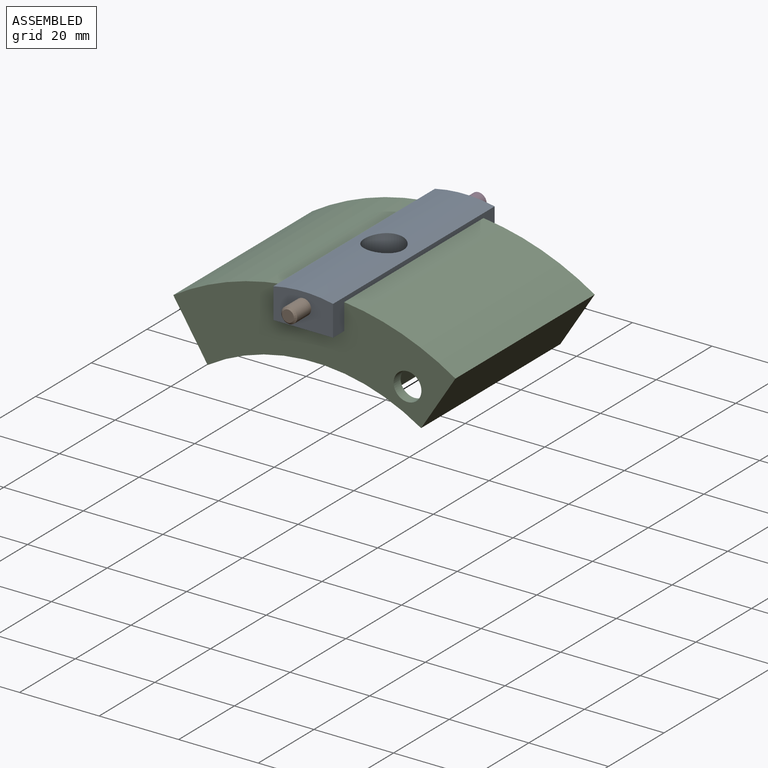
[diagram: assembled view]
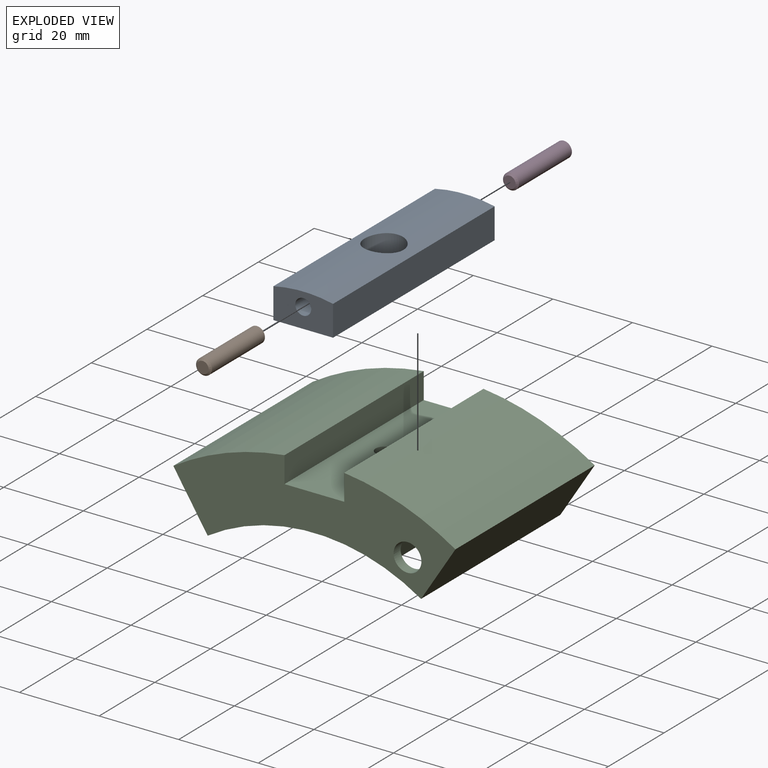
[diagram: exploded view]
GUIDED TOUR — MATED ASSEMBLY (Onshape document 415f8a1dd4521c900c640123, AutoMate assembly 415f8a1dd4521c900c640123_1ac412d3dacfac582a6eeb7e_2874e17421906130be26e6e2_default)

This assembly has 4 components, labeled P0..P3 below (a component is one placed occurrence of a part; the same part can appear more than once), held together by 3 mates. A mate is a constraint between two components; its type names the relative motion it leaves free:
  FASTENED — locks the two components together rigidly (no relative motion).
Axis/direction vectors are unit vectors and 'through' points are millimeter coordinates, both in the assembly's world frame.

MATES
  1. FASTENED "Fastened 1": P3 <-> P0, direction (0.000, 1.000, 0.000) through (-103.35, 42.06, -6.06) mm
  2. FASTENED "Fastened 3": P0 <-> P2, direction (0.000, 0.000, -1.000) through (-103.35, 27.06, -11.06) mm
  3. FASTENED "Fastened 2": P1 <-> P0, direction (0.000, 1.000, 0.000) through (-103.35, 12.06, -6.06) mm

ASSEMBLY ORDER
  1. P0 — the base component [order heuristic]
  2. P1 [order verified]
  3. P3 — core [order heuristic]
  4. P2 [order verified]
Order-tag legend:
  [order verified] — this step's position reverses a verified removal order: the component was checked to insert without passing through the ones already placed.
  [order heuristic] — the first 2 components form the assembly's core: parts whose collision-free extraction could not be verified, listed in mate-graph order.

Of the 4 components, 3 carry the full construction recipe — the FeatureScript program that regenerates the part's solid from scratch; the rest are supplied as boundary geometry only.
Each toured component is shown spotlighted twice — in the assembled view, then in the exploded view, where a leader line traces a displaced component back to its assembled socket (saturated green if recipe-attached, orange if geometry-only; every other component desaturated gray) — followed by its recipe or geometry summary and the mates that hold it.
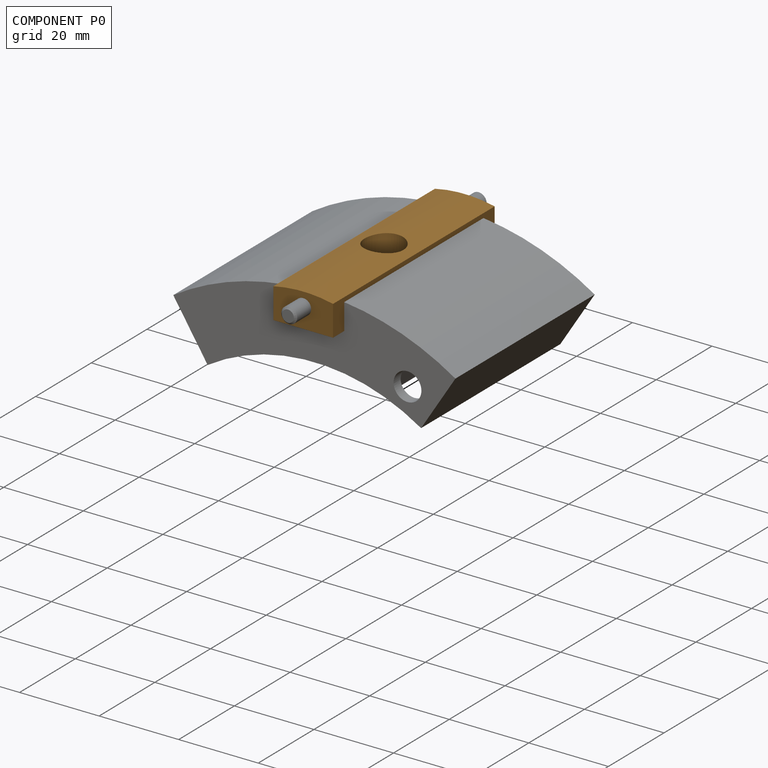
[diagram: component P0 — assembled]
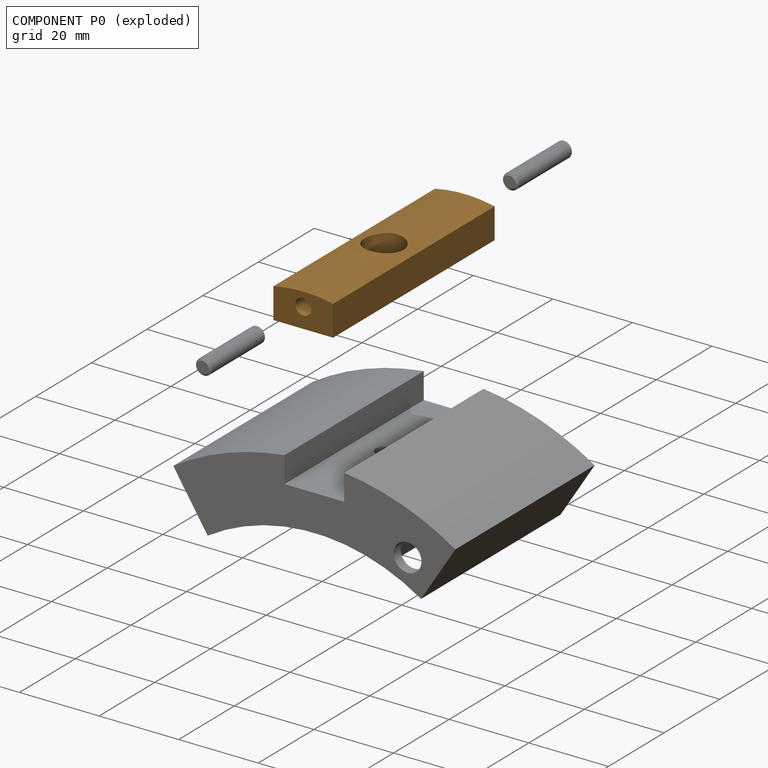
[diagram: component P0 — exploded]
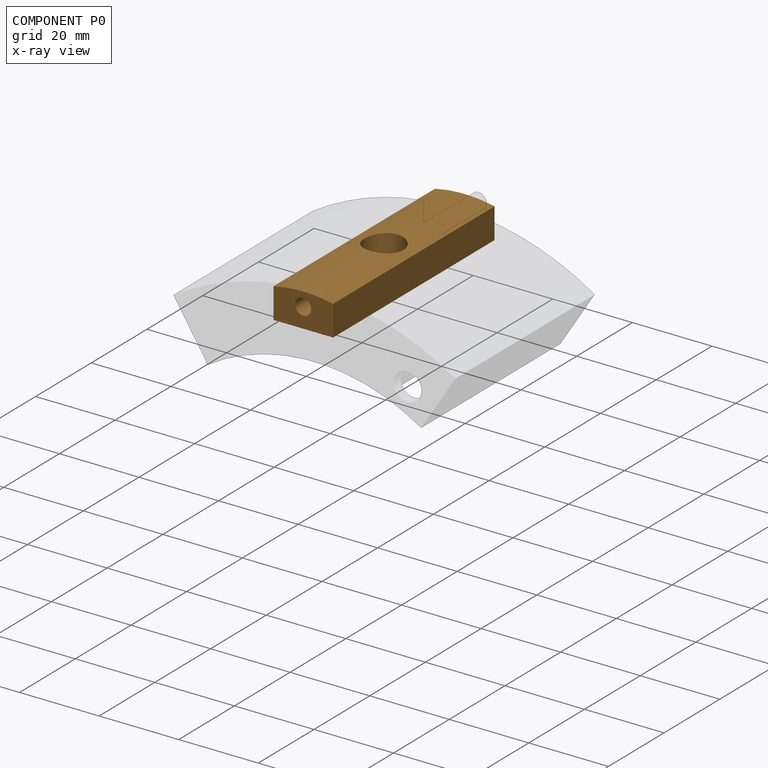
[diagram: component P0 — x-ray view]
COMPONENT P0 — geometry summary (no construction recipe available for this part):
  bounding box: 58.0 x 15.0 x 8.5 mm
  B-rep topology: 1 solid, 13 faces, 54 edges
  volume: 6363 mm^3 (86% of its bounding box)
  symmetry: 2-fold rotationally symmetric about the z axis; mirror-symmetric across its x mid-plane, y mid-plane
Held by: FASTENED mate "Fastened 1" to P3; FASTENED mate "Fastened 3" to P2; FASTENED mate "Fastened 2" to P1.
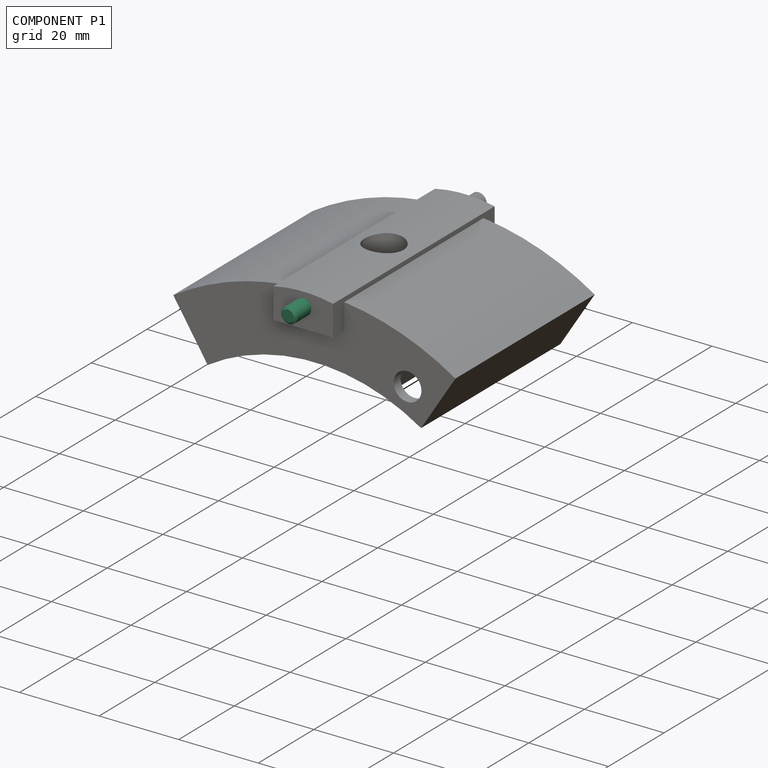
[diagram: component P1 — assembled]
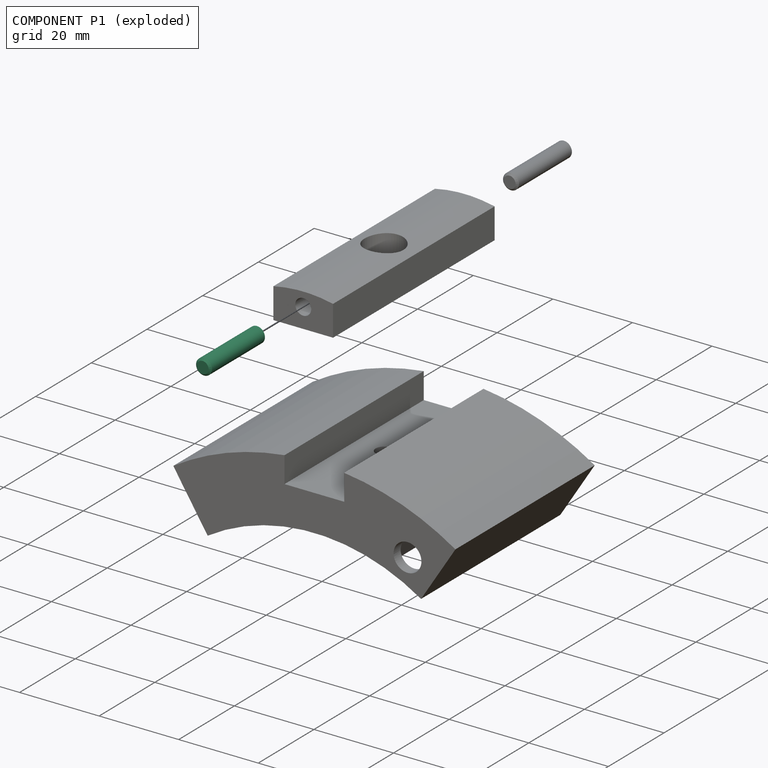
[diagram: component P1 — exploded]
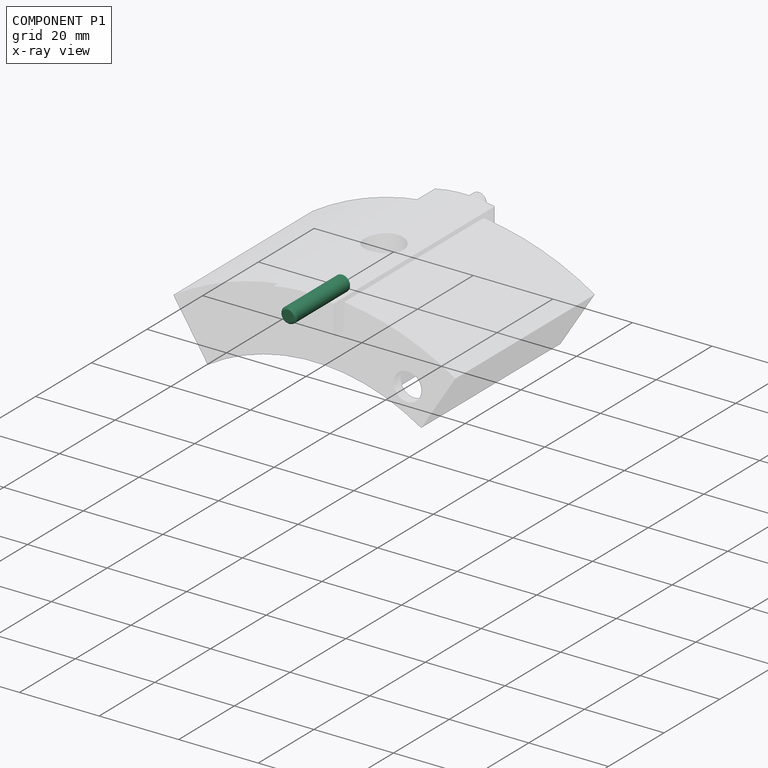
[diagram: component P1 — x-ray view]
COMPONENT P1 — recipe-attached (CADFS 00849729, mesh-verified: the recipe's output STEP matches this component's geometry to below the mesh-comparison resolution (tessellation chordal tolerance ~0.0312 mm)).
Held by: FASTENED mate "Fastened 2" to P0.
Construction recipe (FeatureScript — the CAD program that rebuilds this solid; sketch coordinates are in the units given by the * unit suffixes, e.g. mm):

FeatureScript 1511;
import(path : "onshape/std/geometry.fs", version : "1511.0");
import(path : "onshape/std/common.fs", version : "1511.0");
const mm = millimeter;
const VERTEX = EntityType.VERTEX;
const EDGE = EntityType.EDGE;
const FACE = EntityType.FACE;
const BODY = EntityType.BODY;
function v(x, y){return vector(x, y);}
function OD(order){return orderDisambiguation(order);}
function OSD(set){return originalSetDisambiguation(set);}
function TD(topology){return topologyDisambiguation(topology);}
function TDD(query){return trueDependencyDisambiguation(query);}
function sQuery(a, b, c) {return sketchEntityQuery(a, b, c);}

annotation { "Feature Type Name" : "Feature", "Feature Type Description" : "" }
export const myFeature = defineFeature(function(context is Context, id is Id, definition is map)
    precondition{}
    {
        {
            var Q0;
            Q0=qCreatedBy(makeId("Top.planeOp"),FACE);
            var sketch = newSketch(context, id + "F0", { "sketchPlane" : qUnion([Q0])});
            skCircle(sketch, "E0", {"center": v(0, 0) * mm, "radius": 2 * mm});
            skSolve(sketch);
        }
        {
            var Q0;
            Q0=makeQuery(id+"F0.imprint","IMPRINT",FACE,{"disambiguationData":[TD([[makeQuery(id+"F0.imprint","IMPRINT",EDGE,{"derivedFrom":sQuery(id+"F0.wireOp",EDGE,"E0")}),1.0]])]});
            extrude(context, id + "F1", {"entities" : qUnion([Q0]), "depth" : 20 * mm, "offsetDistance" : 25 * mm});
        }
        {
            var Q0;
            Q0=makeQuery(id+"F1.opExtrude","CAP_EDGE",EDGE,{"disambiguationData":[OSD([sQuery(id+"F0.wireOp",EDGE,"E0")])],"isStart":false});
            var Q1;
            Q1=makeQuery(id+"F1.opExtrude","CAP_EDGE",EDGE,{"disambiguationData":[OSD([sQuery(id+"F0.wireOp",EDGE,"E0")])],"isStart":true});
            chamfer(context, id + "F2", {"entities" : qUnion([Q0, Q1]), "width" : 0.5 * mm, "tangentPropagation" : true});
        }
    });
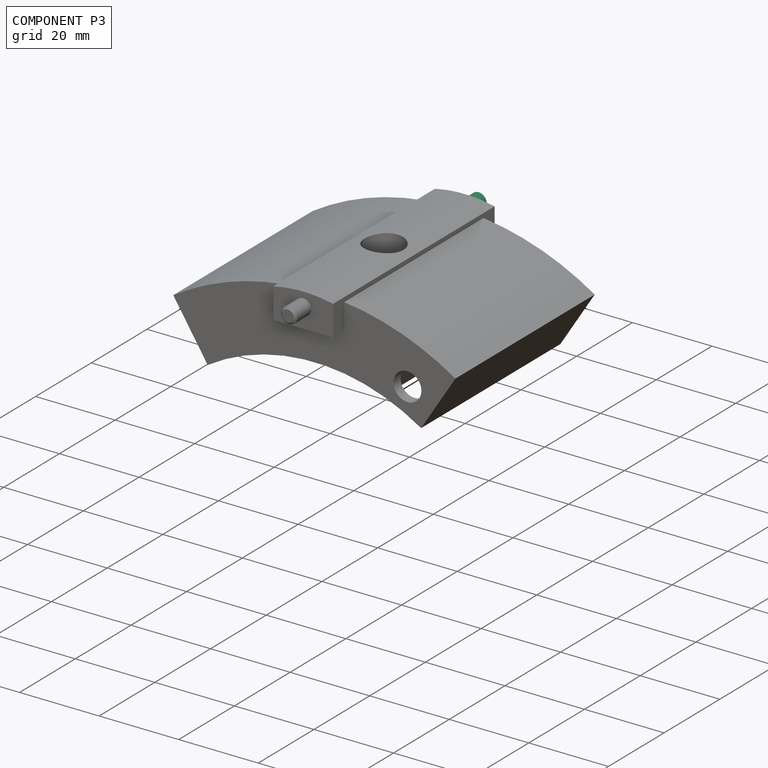
[diagram: component P3 — assembled]
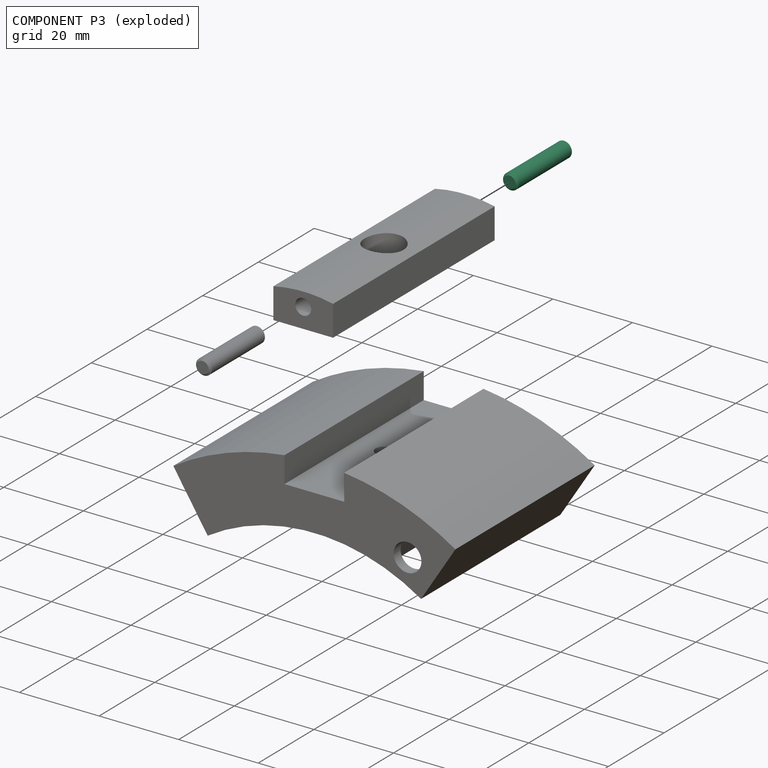
[diagram: component P3 — exploded]
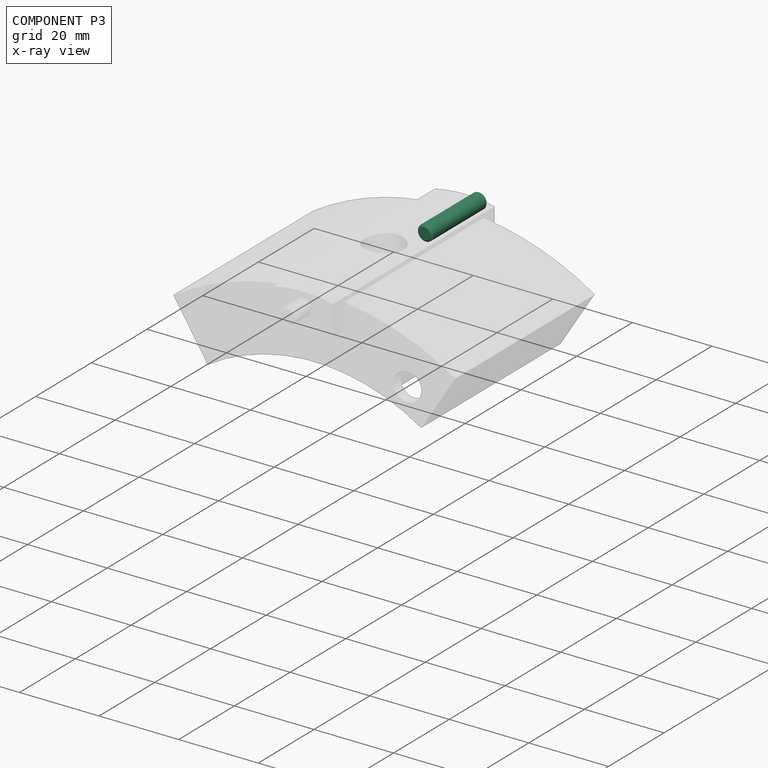
[diagram: component P3 — x-ray view]
COMPONENT P3 — same part as P1 (CADFS 00849729); its construction recipe is shown at P1.
Held by: FASTENED mate "Fastened 1" to P0.
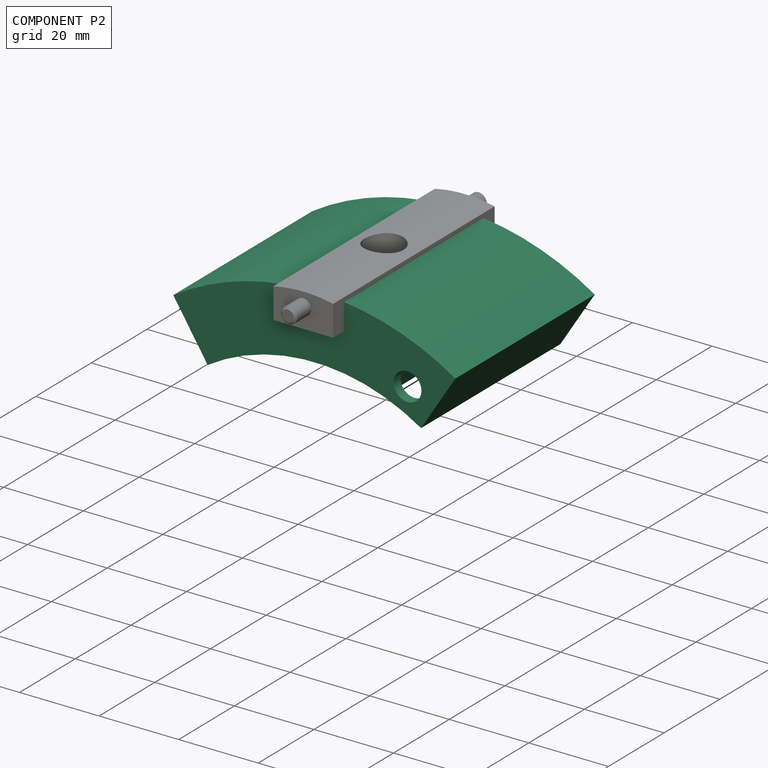
[diagram: component P2 — assembled]
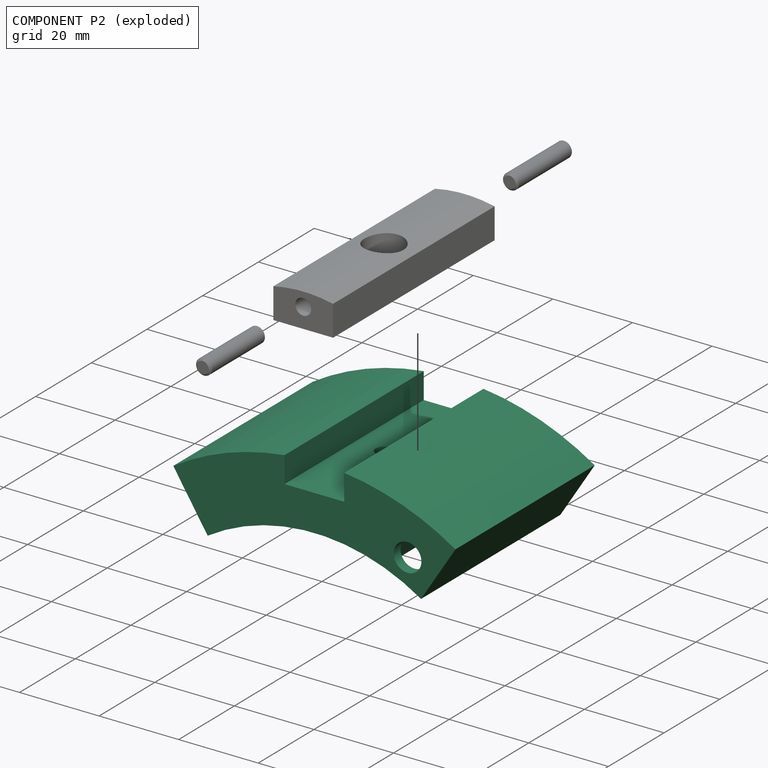
[diagram: component P2 — exploded]
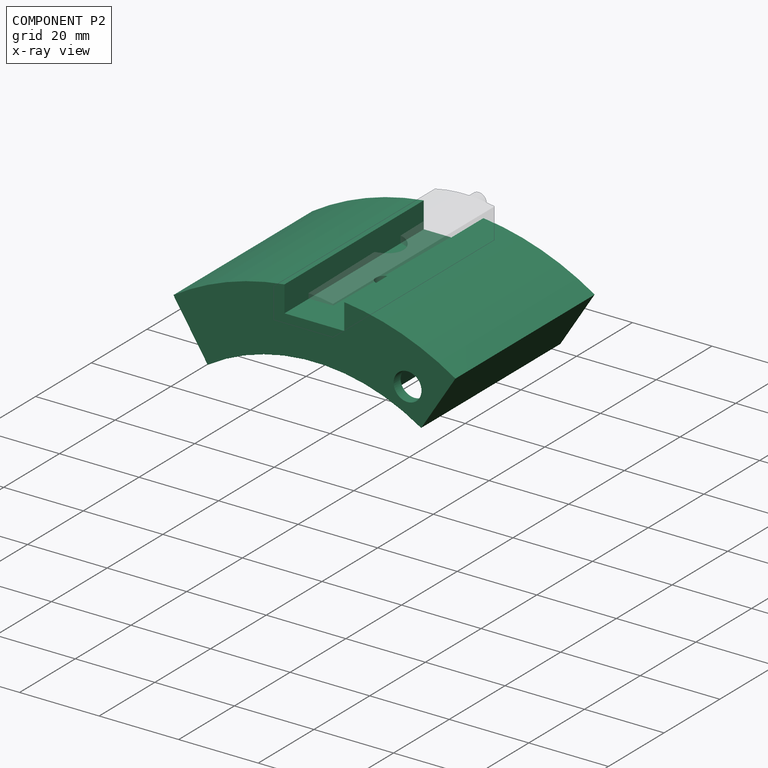
[diagram: component P2 — x-ray view]
COMPONENT P2 — recipe-attached (CADFS 00849004, mesh-verified: the recipe's output STEP matches this component's geometry to below the mesh-comparison resolution (tessellation chordal tolerance ~0.135 mm)).
Held by: FASTENED mate "Fastened 3" to P0.
Construction recipe (FeatureScript — the CAD program that rebuilds this solid; sketch coordinates are in the units given by the * unit suffixes, e.g. mm):

FeatureScript 1511;
import(path : "onshape/std/geometry.fs", version : "1511.0");
import(path : "onshape/std/common.fs", version : "1511.0");
const mm = millimeter;
const VERTEX = EntityType.VERTEX;
const EDGE = EntityType.EDGE;
const FACE = EntityType.FACE;
const BODY = EntityType.BODY;
function v(x, y){return vector(x, y);}
function OD(order){return orderDisambiguation(order);}
function OSD(set){return originalSetDisambiguation(set);}
function TD(topology){return topologyDisambiguation(topology);}
function TDD(query){return trueDependencyDisambiguation(query);}
function sQuery(a, b, c) {return sketchEntityQuery(a, b, c);}

annotation { "Feature Type Name" : "Feature", "Feature Type Description" : "" }
export const myFeature = defineFeature(function(context is Context, id is Id, definition is map)
    precondition{}
    {
        {
            assignVariable(context, id + "F0", {"name" : "largo_axial", "anyValue" : 50});
        }
        {
            assignVariable(context, id + "F1", {"name" : "profundidad_leg", "anyValue" : 10});
        }
        {
            var Q0;
            Q0=qCreatedBy(makeId("Front.planeOp"),FACE);
            var sketch = newSketch(context, id + "F2", { "sketchPlane" : qUnion([Q0])});
            skArc(sketch, "E0", {"start": v(26.82, 42.1) * mm, "mid": v(0, 49.92) * mm, "end": v(-26.82, 42.1) * mm});
            skLineSegment(sketch, "E1", {"start": v(0, 0) * mm, "end": v(26.82, 42.1) * mm});
            skLineSegment(sketch, "E2", {"start": v(0, 0) * mm, "end": v(-26.82, 42.1) * mm});
            skLineSegment(sketch, "E3", {"start": v(0, 0) * mm, "end": v(35.46, 55.66) * mm});
            skLineSegment(sketch, "E4", {"start": v(0, 0) * mm, "end": v(-35.46, 55.66) * mm});
            skArc(sketch, "E5", {"start": v(35.46, 55.66) * mm, "mid": v(0, 66) * mm, "end": v(-35.46, 55.66) * mm});
            skLineSegment(sketch, "E6", {"start": v(0, 49.92) * mm, "end": v(0, 59) * mm});
            skLineSegment(sketch, "E7", {"start": v(0, 59) * mm, "end": v(-7.5, 59) * mm});
            skLineSegment(sketch, "E8", {"start": v(-7.5, 59) * mm, "end": v(-7.5, 65.57) * mm});
            skLineSegment(sketch, "E9.MirrorCS", {"start": v(0, 59) * mm, "end": v(7.5, 59) * mm});
            skLineSegment(sketch, "E10.MirrorCS", {"start": v(7.5, 59) * mm, "end": v(7.5, 65.57) * mm});
            skSolve(sketch);
        }
        {
            var Q0;
            {var subQ0=sQuery(id+"F2.wireOp",EDGE,"E6");Q0=makeQuery(id+"F2.imprint","IMPRINT",FACE,{"disambiguationData":[TD([[makeQuery(id+"F2.imprint","IMPRINT",EDGE,{"derivedFrom":subQ0}),1.0]])]});}
            var Q1;
            {var subQ0=sQuery(id+"F2.wireOp",EDGE,"E6");Q1=makeQuery(id+"F2.imprint","IMPRINT",FACE,{"disambiguationData":[TD([[makeQuery(id+"F2.imprint","IMPRINT",EDGE,{"derivedFrom":subQ0}),-1.0]])]});}
            extrude(context, id + "F3", {"entities" : qUnion([Q0, Q1]), "depth" : (getVariable(context, 'largo_axial')) * mm, "offsetDistance" : 25 * mm});
        }
        {
            var Q0;
            Q0=makeQuery(id+"F3.opExtrude","CAP_FACE",FACE,{"disambiguationData":[OSD([sQuery(id+"F2.wireOp",EDGE,"E0"),sQuery(id+"F2.wireOp",EDGE,"E3"),sQuery(id+"F2.wireOp",EDGE,"E4"),sQuery(id+"F2.wireOp",EDGE,"E5"),sQuery(id+"F2.wireOp",EDGE,"E7"),sQuery(id+"F2.wireOp",EDGE,"E8"),sQuery(id+"F2.wireOp",EDGE,"E9.MirrorCS"),sQuery(id+"F2.wireOp",EDGE,"E10.MirrorCS")])],"isStart":false});
            var sketch = newSketch(context, id + "F4", { "sketchPlane" : qUnion([Q0])});
            skLineSegment(sketch, "E11", {"start": v(0, 0) * mm, "end": v(24.58, 43.45) * mm});
            skLineSegment(sketch, "E12", {"start": v(24.58, 43.45) * mm, "end": v(17.33, 46.82) * mm});
            skSolve(sketch);
        }
        {
            var Q0;
            Q0=sQuery(id+"F4.wireOp",EDGE,"E12");
            cPlane(context, id + "F5", {"entities" : qUnion([Q0]), "cplaneType" : CPlaneType.LINE_ANGLE, "offset" : 25 * mm, "angle" : 90 * degree, "width" : 150 * mm, "height" : 150 * mm});
        }
        {
            var Q0;
            Q0=qCreatedBy(id+"F5.planeOp",FACE);
            var sketch = newSketch(context, id + "F6", { "sketchPlane" : qUnion([Q0])});
            skLineSegment(sketch, "E13.0", {"start": v(4, -50) * mm, "end": v(-4, -50) * mm});
            skLineSegment(sketch, "E14", {"start": v(4, -46.5) * mm, "end": v(4, -3.5) * mm});
            skLineSegment(sketch, "E15", {"start": v(-4, -46.5) * mm, "end": v(-4, -3.5) * mm});
            skPoint(sketch, "E16", {"position": v(4, -47.5) * mm});
            skPoint(sketch, "E17", {"position": v(6, -2.5) * mm});
            skPoint(sketch, "E18", {"position": v(4, -5) * mm});
            skLineSegment(sketch, "E19", {"start": v(3, -47.5) * mm, "end": v(-3, -47.5) * mm});
            skLineSegment(sketch, "E20", {"start": v(3, -2.5) * mm, "end": v(-3, -2.5) * mm});
            skArc(sketch, "E21.filletArc", {"start": v(-4, -46.5) * mm, "mid": v(-3.7, -47.2) * mm, "end": v(-3, -47.5) * mm});
            skPoint(sketch, "E22.newPointA", {"position": v(-4, 0) * mm});
            skArc(sketch, "E22.filletArc", {"start": v(-3, -2.5) * mm, "mid": v(-3.7, -2.8) * mm, "end": v(-4, -3.5) * mm});
            skPoint(sketch, "E23.newPointB", {"position": v(4, 0) * mm});
            skArc(sketch, "E23.filletArc", {"start": v(4, -3.5) * mm, "mid": v(3.7, -2.8) * mm, "end": v(3, -2.5) * mm});
            skArc(sketch, "E24.filletArc", {"start": v(3, -47.5) * mm, "mid": v(3.7, -47.2) * mm, "end": v(4, -46.5) * mm});
            skSolve(sketch);
        }
        {
            var Q0;
            Q0=makeQuery(id+"F6.imprint","IMPRINT",FACE,{"disambiguationData":[TD([[makeQuery(id+"F6.imprint","IMPRINT",EDGE,{"derivedFrom":sQuery(id+"F6.wireOp",EDGE,"E14")}),1.0]])]});
            extrude(context, id + "F7", {"entities" : qUnion([Q0]), "operationType" : NewBodyOperationType.REMOVE, "depth" : (getVariable(context, 'profundidad_leg')) * mm, "offsetDistance" : 25 * mm});
        }
        {
            var Q0;
            Q0=makeQuery(id+"F3.opExtrude","SWEPT_FACE",FACE,{"disambiguationData":[OSD([sQuery(id+"F2.wireOp",EDGE,"E7"),sQuery(id+"F2.wireOp",EDGE,"E9.MirrorCS")])]});
            var sketch = newSketch(context, id + "F8", { "sketchPlane" : qUnion([Q0])});
            skLineSegment(sketch, "E25", {"start": v(0, 0) * mm, "end": v(0, -50) * mm});
            skPoint(sketch, "E26", {"position": v(0, -25) * mm});
            skSolve(sketch);
        }
        {
            var Q0;
            Q0=sQuery(id+"F8.wireOp",VERTEX,"E26");
            var Q1;
            Q1=makeQuery(id+"F3.opExtrude","SWEPT_BODY",BODY,{"disambiguationData":[OSD([sQuery(id+"F2.wireOp",EDGE,"E0"),sQuery(id+"F2.wireOp",EDGE,"E3"),sQuery(id+"F2.wireOp",EDGE,"E4"),sQuery(id+"F2.wireOp",EDGE,"E5"),sQuery(id+"F2.wireOp",EDGE,"E7"),sQuery(id+"F2.wireOp",EDGE,"E8"),sQuery(id+"F2.wireOp",EDGE,"E9.MirrorCS"),sQuery(id+"F2.wireOp",EDGE,"E10.MirrorCS")])]});
            hole(context, id + "F9", {"style" : HoleStyle.SIMPLE, "endStyle" : HoleEndStyle.BLIND, "standardTappedOrClearance" : lookupTablePath({ "standard" : "ISO", "engagement" : "75%", "pitch" : "0.8 mm", "size" : "M5", "type" : "Tapped" }), "standardBlindInLast" : lookupTablePath({ "standard" : "ISO", "engagement" : "75%", "pitch" : "0.8 mm", "size" : "M5", "type" : "Tapped" }), "holeDiameter" : 4.2 * mm, "majorDiameter" : 5 * mm, "showTappedDepth" : true, "holeDepth" : 4.8 * mm, "isTappedThrough" : true, "tappedDepth" : 4 * mm, "tapClearance" : 1, "startFromSketch" : true, "locations" : qUnion([Q0]), "scope" : qUnion([Q1])});
        }
        {
            var Q0;
            {var subQ3=sQuery(id+"F2.wireOp",EDGE,"E3");var subQ6=makeQuery(id+"F3.opExtrude","CAP_EDGE",EDGE,{"disambiguationData":[OSD([subQ3])],"isStart":false});Q0=makeQuery(id+"F4.imprint","IMPRINT",FACE,{"disambiguationData":[TD([[makeQuery(id+"F4.imprint","IMPRINT",EDGE,{"derivedFrom":subQ6}),1.0]])]});}
            var sketch = newSketch(context, id + "F10", { "sketchPlane" : qUnion([Q0])});
            skLineSegment(sketch, "E27.0", {"start": v(24.58, 43.45) * mm, "end": v(17.33, 46.82) * mm});
            skLineSegment(sketch, "E28", {"start": v(24.58, 43.45) * mm, "end": v(28.8, 52.52) * mm});
            skLineSegment(sketch, "E29", {"start": v(28.8, 52.52) * mm, "end": v(21.6, 56.03) * mm});
            skLineSegment(sketch, "E30", {"start": v(21.6, 56.03) * mm, "end": v(17.33, 46.82) * mm});
            skPoint(sketch, "E31", {"position": v(25.17, 54.2) * mm});
            skLineSegment(sketch, "E32", {"start": v(25.17, 54.2) * mm, "end": v(23.4, 50.61) * mm});
            skSolve(sketch);
        }
        {
            var Q0;
            Q0=sQuery(id+"F10.wireOp",VERTEX,"E32.end");
            var Q1;
            Q1=makeQuery(id+"F3.opExtrude","SWEPT_BODY",BODY,{"disambiguationData":[OSD([sQuery(id+"F2.wireOp",EDGE,"E0"),sQuery(id+"F2.wireOp",EDGE,"E3"),sQuery(id+"F2.wireOp",EDGE,"E4"),sQuery(id+"F2.wireOp",EDGE,"E5"),sQuery(id+"F2.wireOp",EDGE,"E7"),sQuery(id+"F2.wireOp",EDGE,"E8"),sQuery(id+"F2.wireOp",EDGE,"E9.MirrorCS"),sQuery(id+"F2.wireOp",EDGE,"E10.MirrorCS")])]});
            hole(context, id + "F11", {"style" : HoleStyle.SIMPLE, "endStyle" : HoleEndStyle.BLIND, "standardTappedOrClearance" : lookupTablePath({ "standard" : "ISO", "engagement" : "75%", "pitch" : "1 mm", "size" : "M8", "type" : "Tapped" }), "standardBlindInLast" : lookupTablePath({ "standard" : "ISO", "engagement" : "75%", "pitch" : "1 mm", "size" : "M8", "type" : "Tapped" }), "holeDiameter" : 7 * mm, "majorDiameter" : 8 * mm, "showTappedDepth" : true, "holeDepth" : 28 * mm, "tappedDepth" : 0.5 * (getVariable(context, 'largo_axial')) * mm, "tapClearance" : 3, "startFromSketch" : true, "locations" : qUnion([Q0]), "scope" : qUnion([Q1])});
        }
    });
PROVENANCE & LICENSES
Assembly (occurrences, transforms, mates, per-part STEP geometry): AutoMate dataset, Zenodo record 7776208, CC0.
Construction recipes: CADFS (HuggingFace VladPyatov/CADFS, CC-BY-4.0, layered over the ABC dataset), FeatureScript reconstruction programs keyed by ABC model id.
Join: ABC meta listings map ABC model id -> Onshape documentId; within a shared document, parts are matched by geometric signature (bounding-box dims + volume at 0.1% relative tolerance, exact B-rep face/solid counts).
Verification: 3 of this assembly's 4 components carry a recipe attachment, and every attachment is mesh-verified: the CADFS STEP and the AutoMate member STEP were compared as meshes in their shared local frame (symmetric sampled-point-to-mesh distance); worst across the 3 attachments: below the mesh-comparison resolution (tessellation chordal tolerance ~0.135 mm) on a 90 mm part.
Renders: orthographic iso camera (az 35 / el 25); the floor grid conveys scale (grid pitch printed in each image; no ruler). In the exploded view each component is displaced by its stored offset vector: the offsets alone carry the explosion direction (mate normal/axis signs are not orientation cues and do not encode it), and separation distances are assigned per mate-chain, not proportionally to assembly-order depth.
